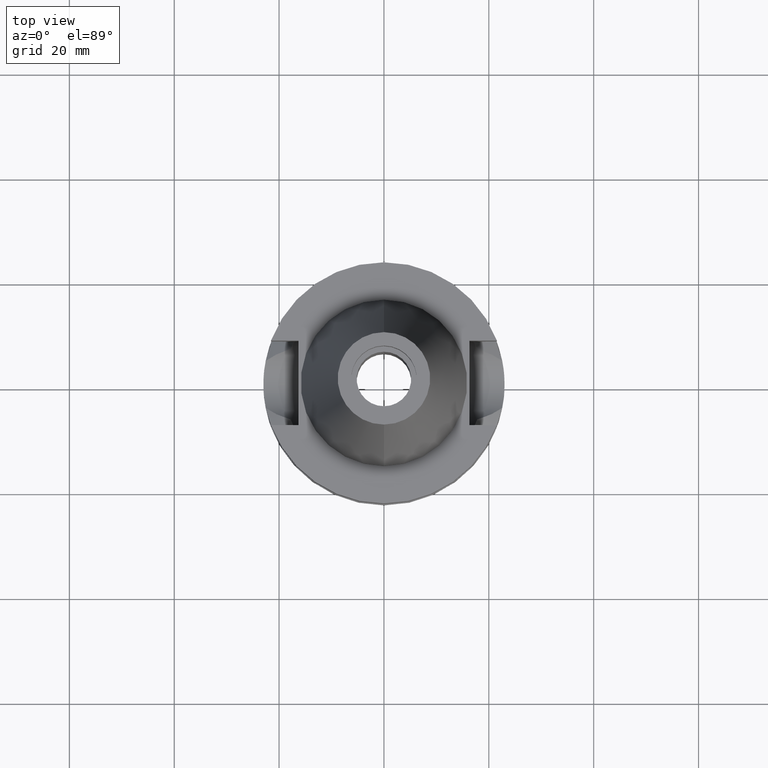
[diagram: clean part render]
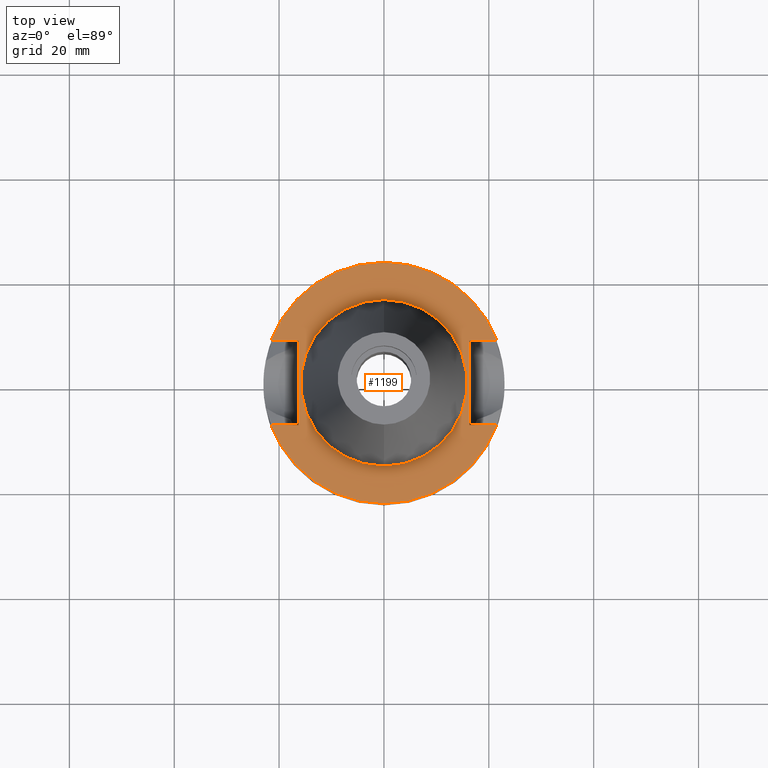
[diagram: same view with one face highlighted and labeled with its STEP entity id]
A machine part, top view. The second image highlights one B-rep face of the part: STEP entity #1199.
In plain terms, the highlighted planar face has unit normal (0, 0, -1).
Its self-contained STEP definition (entity closure, byte-faithful):
#8 = LINE ( 'NONE', #446, #664 ) ;
#41 = EDGE_CURVE ( 'NONE', #1502, #2727, #1381, .T. ) ;
#84 = DIRECTION ( 'NONE',  ( 0.0000000000000000000, 0.0000000000000000000, -1.000000000000000000 ) ) ;
#125 = AXIS2_PLACEMENT_3D ( 'NONE', #2925, #84, #2685 ) ;
#126 = DIRECTION ( 'NONE',  ( 0.0000000000000000000, 1.000000000000000000, 0.0000000000000000000 ) ) ;
#135 = AXIS2_PLACEMENT_3D ( 'NONE', #1186, #296, #1712 ) ;
#296 = DIRECTION ( 'NONE',  ( 0.0000000000000000000, 0.0000000000000000000, 1.000000000000000000 ) ) ;
#416 = ORIENTED_EDGE ( 'NONE', *, *, #832, .F. ) ;
#446 = CARTESIAN_POINT ( 'NONE',  ( 16.29999999999999716, 8.050000000000000711, -1.000000000000000000 ) ) ;
#467 = VECTOR ( 'NONE', #2345, 1000.000000000000000 ) ;
#491 = VERTEX_POINT ( 'NONE', #785 ) ;
#492 = CARTESIAN_POINT ( 'NONE',  ( 0.0000000000000000000, 15.87500000000000000, -1.000000000000000000 ) ) ;
#511 = VECTOR ( 'NONE', #622, 1000.000000000000000 ) ;
#547 = EDGE_CURVE ( 'NONE', #2471, #1889, #738, .T. ) ;
#548 = ORIENTED_EDGE ( 'NONE', *, *, #1695, .T. ) ;
#556 = CARTESIAN_POINT ( 'NONE',  ( -16.29999999999999716, -8.050000000000000711, -1.000000000000000000 ) ) ;
#574 = EDGE_CURVE ( 'NONE', #576, #491, #2510, .T. ) ;
#576 = VERTEX_POINT ( 'NONE', #492 ) ;
#622 = DIRECTION ( 'NONE',  ( -1.000000000000000000, 9.347030801892000173E-14, 0.0000000000000000000 ) ) ;
#654 = EDGE_LOOP ( 'NONE', ( #2573, #416, #1128, #1071, #548, #2209, #1908, #1114 ) ) ;
#664 = VECTOR ( 'NONE', #2337, 1000.000000000000000 ) ;
#738 = LINE ( 'NONE', #2579, #816 ) ;
#785 = CARTESIAN_POINT ( 'NONE',  ( 0.0000000000000000000, -15.87500000000000000, -1.000000000000000000 ) ) ;
#795 = CARTESIAN_POINT ( 'NONE',  ( 21.54524309446999908, 8.050000000000000711, -1.000000000000000000 ) ) ;
#807 = FACE_OUTER_BOUND ( 'NONE', #654, .T. ) ;
#816 = VECTOR ( 'NONE', #969, 1000.000000000000000 ) ;
#832 = EDGE_CURVE ( 'NONE', #1331, #2727, #2362, .T. ) ;
#849 = CARTESIAN_POINT ( 'NONE',  ( -16.29999999999999716, 8.050000000000000711, -1.000000000000000000 ) ) ;
#861 = AXIS2_PLACEMENT_3D ( 'NONE', #2577, #2063, #2100 ) ;
#969 = DIRECTION ( 'NONE',  ( 0.0000000000000000000, -1.000000000000000000, 0.0000000000000000000 ) ) ;
#1071 = ORIENTED_EDGE ( 'NONE', *, *, #547, .F. ) ;
#1090 = DIRECTION ( 'NONE',  ( 1.000000000000000000, -9.347030801892000173E-14, 0.0000000000000000000 ) ) ;
#1112 = CIRCLE ( 'NONE', #861, 23.00000000000000000 ) ;
#1114 = ORIENTED_EDGE ( 'NONE', *, *, #2791, .F. ) ;
#1119 = DIRECTION ( 'NONE',  ( 0.0000000000000000000, 0.0000000000000000000, 1.000000000000000000 ) ) ;
#1128 = ORIENTED_EDGE ( 'NONE', *, *, #2750, .F. ) ;
#1156 = AXIS2_PLACEMENT_3D ( 'NONE', #1334, #1119, #2033 ) ;
#1173 = CARTESIAN_POINT ( 'NONE',  ( -16.29999999999999716, 8.050000000000000711, -1.000000000000000000 ) ) ;
#1186 = CARTESIAN_POINT ( 'NONE',  ( 0.0000000000000000000, 0.0000000000000000000, -1.000000000000000000 ) ) ;
#1199 = ADVANCED_FACE ( 'NONE', ( #807, #1736 ), #2965, .F. ) ;
#1279 = LINE ( 'NONE', #2238, #2765 ) ;
#1293 = LINE ( 'NONE', #2202, #1717 ) ;
#1331 = VERTEX_POINT ( 'NONE', #2221 ) ;
#1334 = CARTESIAN_POINT ( 'NONE',  ( 0.0000000000000000000, 0.0000000000000000000, -1.000000000000000000 ) ) ;
#1349 = CARTESIAN_POINT ( 'NONE',  ( 16.29999999999999716, -8.050000000000000711, -1.000000000000000000 ) ) ;
#1381 = LINE ( 'NONE', #1425, #467 ) ;
#1425 = CARTESIAN_POINT ( 'NONE',  ( -16.29999999999999716, -8.050000000000000711, -1.000000000000000000 ) ) ;
#1502 = VERTEX_POINT ( 'NONE', #556 ) ;
#1514 = CARTESIAN_POINT ( 'NONE',  ( -21.54524309446999908, -8.050000000000000711, -1.000000000000000000 ) ) ;
#1545 = EDGE_CURVE ( 'NONE', #1681, #2277, #2729, .T. ) ;
#1554 = ORIENTED_EDGE ( 'NONE', *, *, #1559, .F. ) ;
#1559 = EDGE_CURVE ( 'NONE', #491, #576, #2214, .T. ) ;
#1669 = EDGE_CURVE ( 'NONE', #2277, #2780, #1112, .T. ) ;
#1681 = VERTEX_POINT ( 'NONE', #1173 ) ;
#1695 = EDGE_CURVE ( 'NONE', #2471, #2780, #8, .T. ) ;
#1712 = DIRECTION ( 'NONE',  ( 0.0000000000000000000, 1.000000000000000000, 0.0000000000000000000 ) ) ;
#1717 = VECTOR ( 'NONE', #126, 1000.000000000000000 ) ;
#1736 = FACE_BOUND ( 'NONE', #2891, .T. ) ;
#1769 = DIRECTION ( 'NONE',  ( 0.0000000000000000000, -1.000000000000000000, 0.0000000000000000000 ) ) ;
#1781 = DIRECTION ( 'NONE',  ( 0.0000000000000000000, 0.0000000000000000000, -1.000000000000000000 ) ) ;
#1889 = VERTEX_POINT ( 'NONE', #1349 ) ;
#1908 = ORIENTED_EDGE ( 'NONE', *, *, #1545, .F. ) ;
#2033 = DIRECTION ( 'NONE',  ( 0.0000000000000000000, -1.000000000000000000, 0.0000000000000000000 ) ) ;
#2063 = DIRECTION ( 'NONE',  ( 0.0000000000000000000, 0.0000000000000000000, -1.000000000000000000 ) ) ;
#2073 = CARTESIAN_POINT ( 'NONE',  ( -21.54524309446999908, 8.050000000000000711, -1.000000000000000000 ) ) ;
#2100 = DIRECTION ( 'NONE',  ( 0.0000000000000000000, 1.000000000000000000, 0.0000000000000000000 ) ) ;
#2202 = CARTESIAN_POINT ( 'NONE',  ( -16.29999999999999716, -8.050000000000000711, -1.000000000000000000 ) ) ;
#2209 = ORIENTED_EDGE ( 'NONE', *, *, #1669, .F. ) ;
#2214 = CIRCLE ( 'NONE', #1156, 15.87500000000000000 ) ;
#2216 = CARTESIAN_POINT ( 'NONE',  ( 0.0000000000000000000, 0.0000000000000000000, -1.000000000000000000 ) ) ;
#2221 = CARTESIAN_POINT ( 'NONE',  ( 21.54524309446999908, -8.050000000000000711, -1.000000000000000000 ) ) ;
#2227 = ORIENTED_EDGE ( 'NONE', *, *, #574, .F. ) ;
#2238 = CARTESIAN_POINT ( 'NONE',  ( 16.29999999999999716, -8.050000000000000711, -1.000000000000000000 ) ) ;
#2277 = VERTEX_POINT ( 'NONE', #2073 ) ;
#2337 = DIRECTION ( 'NONE',  ( 1.000000000000000000, 9.380896855521999773E-14, 0.0000000000000000000 ) ) ;
#2345 = DIRECTION ( 'NONE',  ( -1.000000000000000000, -9.313164748262000573E-14, 0.0000000000000000000 ) ) ;
#2362 = CIRCLE ( 'NONE', #125, 23.00000000000000000 ) ;
#2471 = VERTEX_POINT ( 'NONE', #2509 ) ;
#2509 = CARTESIAN_POINT ( 'NONE',  ( 16.29999999999999716, 8.050000000000000711, -1.000000000000000000 ) ) ;
#2510 = CIRCLE ( 'NONE', #135, 15.87500000000000000 ) ;
#2573 = ORIENTED_EDGE ( 'NONE', *, *, #41, .T. ) ;
#2577 = CARTESIAN_POINT ( 'NONE',  ( 0.0000000000000000000, 0.0000000000000000000, -1.000000000000000000 ) ) ;
#2579 = CARTESIAN_POINT ( 'NONE',  ( 16.29999999999999716, 8.050000000000000711, -1.000000000000000000 ) ) ;
#2606 = AXIS2_PLACEMENT_3D ( 'NONE', #2216, #1781, #1769 ) ;
#2685 = DIRECTION ( 'NONE',  ( 0.0000000000000000000, -1.000000000000000000, 0.0000000000000000000 ) ) ;
#2727 = VERTEX_POINT ( 'NONE', #1514 ) ;
#2729 = LINE ( 'NONE', #849, #511 ) ;
#2750 = EDGE_CURVE ( 'NONE', #1889, #1331, #1279, .T. ) ;
#2765 = VECTOR ( 'NONE', #1090, 1000.000000000000000 ) ;
#2780 = VERTEX_POINT ( 'NONE', #795 ) ;
#2791 = EDGE_CURVE ( 'NONE', #1502, #1681, #1293, .T. ) ;
#2891 = EDGE_LOOP ( 'NONE', ( #2227, #1554 ) ) ;
#2925 = CARTESIAN_POINT ( 'NONE',  ( 0.0000000000000000000, 0.0000000000000000000, -1.000000000000000000 ) ) ;
#2965 = PLANE ( 'NONE',  #2606 ) ;